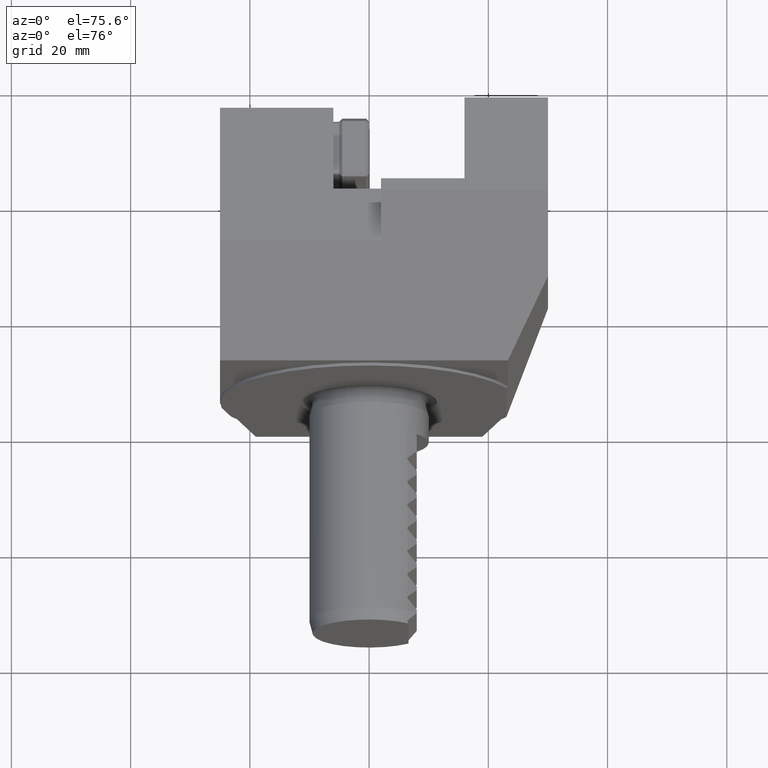
[diagram: clean part render]
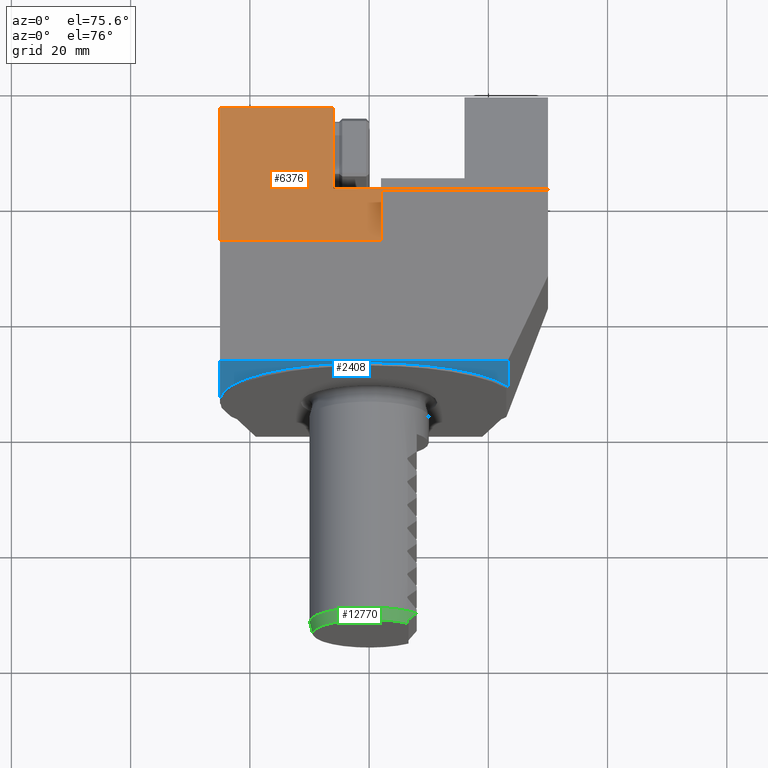
[diagram: same view with three faces highlighted in distinct colors, each labeled with its STEP entity id]
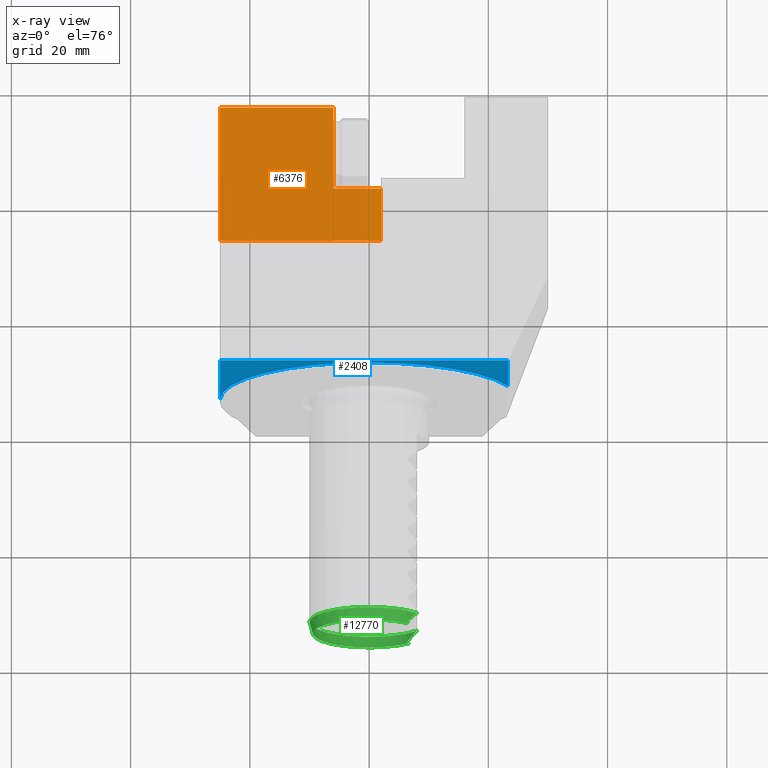
[diagram: x-ray of the same camera — body ghosted, the three highlighted faces saturated]
A machine part, auxiliary view with three faces highlighted in distinct colors.
The next image is the same camera in x-ray (body ghosted, the three faces saturated) — at least one of them is partly hidden behind the body in this view.
Their STEP definitions:

[orange] entity #6376 — the highlighted planar face has unit normal (0, 0, 1).
#202 = ORIENTED_EDGE ( 'NONE', *, *, #13843, .F. ) ;
#275 = CARTESIAN_POINT ( 'NONE',  ( -6.000000000000003553, 26.00000000000000000, 43.00000000000000000 ) ) ;
#762 = LINE ( 'NONE', #4694, #6866 ) ;
#805 = PLANE ( 'NONE',  #2265 ) ;
#1365 = VERTEX_POINT ( 'NONE', #12585 ) ;
#1441 = VERTEX_POINT ( 'NONE', #12981 ) ;
#2094 = FACE_OUTER_BOUND ( 'NONE', #10285, .T. ) ;
#2108 = DIRECTION ( 'NONE',  ( -1.000000000000000000, -1.295371175675670527E-16, 0.000000000000000000 ) ) ;
#2265 = AXIS2_PLACEMENT_3D ( 'NONE', #11246, #11327, #16477 ) ;
#2308 = ORIENTED_EDGE ( 'NONE', *, *, #9186, .T. ) ;
#2965 = CARTESIAN_POINT ( 'NONE',  ( 2.000000000000011102, -40.00000000000000711, 43.00000000000000711 ) ) ;
#3160 = EDGE_CURVE ( 'NONE', #5252, #8466, #6969, .T. ) ;
#3188 = ORIENTED_EDGE ( 'NONE', *, *, #10696, .F. ) ;
#3385 = CARTESIAN_POINT ( 'NONE',  ( 2.000000000000003997, 17.00000000000004263, 43.00000000000000711 ) ) ;
#4694 = CARTESIAN_POINT ( 'NONE',  ( -6.000000000000000888, -40.00000000000000711, 43.00000000000000711 ) ) ;
#5252 = VERTEX_POINT ( 'NONE', #275 ) ;
#5775 = VECTOR ( 'NONE', #2108, 1000.000000000000000 ) ;
#6376 = ADVANCED_FACE ( 'Defeature completata2_56', ( #2094 ), #805, .T. ) ;
#6587 = VECTOR ( 'NONE', #15278, 1000.000000000000000 ) ;
#6866 = VECTOR ( 'NONE', #7457, 1000.000000000000000 ) ;
#6969 = LINE ( 'NONE', #12140, #7246 ) ;
#7246 = VECTOR ( 'NONE', #10795, 1000.000000000000000 ) ;
#7457 = DIRECTION ( 'NONE',  ( 4.611346136468049201E-17, -1.000000000000000000, 0.000000000000000000 ) ) ;
#7963 = ORIENTED_EDGE ( 'NONE', *, *, #3160, .F. ) ;
#8466 = VERTEX_POINT ( 'NONE', #9258 ) ;
#9186 = EDGE_CURVE ( 'NONE', #1441, #8466, #11952, .T. ) ;
#9195 = VECTOR ( 'NONE', #10682, 1000.000000000000000 ) ;
#9258 = CARTESIAN_POINT ( 'NONE',  ( 2.000000000000006217, 25.99999999999999645, 43.00000000000000711 ) ) ;
#10276 = DIRECTION ( 'NONE',  ( 1.000000000000000000, -0.000000000000000000, -0.000000000000000000 ) ) ;
#10285 = EDGE_LOOP ( 'NONE', ( #202, #2308, #7963, #12942, #11160, #3188 ) ) ;
#10682 = DIRECTION ( 'NONE',  ( -1.295371175675670281E-16, 1.000000000000000000, -0.000000000000000000 ) ) ;
#10696 = EDGE_CURVE ( 'NONE', #15179, #1365, #16615, .T. ) ;
#10795 = DIRECTION ( 'NONE',  ( 1.000000000000000000, -1.577021341797097560E-16, 0.000000000000000000 ) ) ;
#10843 = VERTEX_POINT ( 'NONE', #13202 ) ;
#10941 = CARTESIAN_POINT ( 'NONE',  ( -25.00000000000000711, 17.00000000000003197, 43.00000000000000711 ) ) ;
#11085 = LINE ( 'NONE', #3385, #5775 ) ;
#11160 = ORIENTED_EDGE ( 'NONE', *, *, #11317, .F. ) ;
#11246 = CARTESIAN_POINT ( 'NONE',  ( 2.000000000000011102, -40.00000000000000711, 43.00000000000000711 ) ) ;
#11317 = EDGE_CURVE ( 'NONE', #1365, #10843, #16594, .T. ) ;
#11327 = DIRECTION ( 'NONE',  ( 0.000000000000000000, 0.000000000000000000, 1.000000000000000000 ) ) ;
#11952 = LINE ( 'NONE', #2965, #9195 ) ;
#12140 = CARTESIAN_POINT ( 'NONE',  ( 2.000000000000021760, 25.99999999999999645, 43.00000000000000711 ) ) ;
#12298 = VECTOR ( 'NONE', #10276, 1000.000000000000000 ) ;
#12574 = CARTESIAN_POINT ( 'NONE',  ( -24.99999999999998579, -40.00000000000000711, 43.00000000000000711 ) ) ;
#12585 = CARTESIAN_POINT ( 'NONE',  ( -24.99999999999999289, 39.99999999999999289, 43.00000000000000711 ) ) ;
#12714 = CARTESIAN_POINT ( 'NONE',  ( 2.000000000000000888, 39.99999999999999289, 43.00000000000000711 ) ) ;
#12942 = ORIENTED_EDGE ( 'NONE', *, *, #15407, .F. ) ;
#12981 = CARTESIAN_POINT ( 'NONE',  ( 2.000000000000006217, 17.00000000000004263, 43.00000000000000711 ) ) ;
#13202 = CARTESIAN_POINT ( 'NONE',  ( -6.000000000000005329, 39.99999999999999289, 43.00000000000000711 ) ) ;
#13843 = EDGE_CURVE ( 'NONE', #1441, #15179, #11085, .T. ) ;
#15179 = VERTEX_POINT ( 'NONE', #10941 ) ;
#15278 = DIRECTION ( 'NONE',  ( -1.295371175675670281E-16, 1.000000000000000000, -0.000000000000000000 ) ) ;
#15407 = EDGE_CURVE ( 'NONE', #10843, #5252, #762, .T. ) ;
#16477 = DIRECTION ( 'NONE',  ( 1.000000000000000000, 0.000000000000000000, -0.000000000000000000 ) ) ;
#16594 = LINE ( 'NONE', #12714, #12298 ) ;
#16615 = LINE ( 'NONE', #12574, #6587 ) ;

[blue] entity #2408 — the highlighted planar face has unit normal (0, -1, 0).
#188 = CARTESIAN_POINT ( 'NONE',  ( -24.99999999999999289, 0.4999999999999985012, 0.000000000000000000 ) ) ;
#776 = FACE_OUTER_BOUND ( 'NONE', #2245, .T. ) ;
#1389 = CARTESIAN_POINT ( 'NONE',  ( -24.99999999999999289, 0.4999999999999983902, 0.000000000000000000 ) ) ;
#1608 = DIRECTION ( 'NONE',  ( 1.000000000000000000, 1.295371175675670281E-16, -2.975747962828891662E-32 ) ) ;
#2012 = VERTEX_POINT ( 'NONE', #7940 ) ;
#2245 = EDGE_LOOP ( 'NONE', ( #16360, #11415, #7841, #12785 ) ) ;
#2408 = ADVANCED_FACE ( 'Defeature completata2_7', ( #776 ), #14931, .T. ) ;
#3242 = EDGE_CURVE ( 'NONE', #11605, #16244, #6623, .T. ) ;
#3428 = CARTESIAN_POINT ( 'NONE',  ( -25.00000000000000000, 0.4999999999999985012, 0.000000000000000000 ) ) ;
#3942 = AXIS2_PLACEMENT_3D ( 'NONE', #5864, #9758, #9681 ) ;
#4296 = VECTOR ( 'NONE', #1608, 1000.000000000000000 ) ;
#4649 = LINE ( 'NONE', #8526, #6565 ) ;
#5192 = VERTEX_POINT ( 'NONE', #1389 ) ;
#5864 = CARTESIAN_POINT ( 'NONE',  ( -6.476855878378372358E-17, 0.5000000000000016653, 0.000000000000000000 ) ) ;
#6565 = VECTOR ( 'NONE', #13704, 1000.000000000000000 ) ;
#6623 = LINE ( 'NONE', #14408, #4296 ) ;
#7515 = EDGE_CURVE ( 'NONE', #5192, #2012, #11535, .T. ) ;
#7841 = ORIENTED_EDGE ( 'NONE', *, *, #7515, .T. ) ;
#7940 = CARTESIAN_POINT ( 'NONE',  ( 23.28867513459482197, 0.5000000000000046629, 9.090523113402493749 ) ) ;
#8155 = EDGE_CURVE ( 'NONE', #11605, #5192, #8815, .T. ) ;
#8436 = CARTESIAN_POINT ( 'NONE',  ( -25.00000000000000355, 0.4999999999999990563, 26.49999999999991118 ) ) ;
#8526 = CARTESIAN_POINT ( 'NONE',  ( 23.28867513459482197, 0.5000000000000047740, 0.000000000000000000 ) ) ;
#8815 = LINE ( 'NONE', #188, #9102 ) ;
#9102 = VECTOR ( 'NONE', #9122, 1000.000000000000000 ) ;
#9122 = DIRECTION ( 'NONE',  ( 0.000000000000000000, 0.000000000000000000, -1.000000000000000000 ) ) ;
#9681 = DIRECTION ( 'NONE',  ( -1.000000000000000000, -1.301042606982605321E-16, 0.000000000000000000 ) ) ;
#9758 = DIRECTION ( 'NONE',  ( -1.295371175675670281E-16, 1.000000000000000000, -0.000000000000000000 ) ) ;
#9885 = CARTESIAN_POINT ( 'NONE',  ( 23.28867513459481842, 0.5000000000000061062, 26.49999999999991473 ) ) ;
#10409 = EDGE_CURVE ( 'NONE', #16244, #2012, #4649, .T. ) ;
#11415 = ORIENTED_EDGE ( 'NONE', *, *, #8155, .T. ) ;
#11535 = CIRCLE ( 'NONE', #3942, 25.00000000000000000 ) ;
#11605 = VERTEX_POINT ( 'NONE', #8436 ) ;
#12785 = ORIENTED_EDGE ( 'NONE', *, *, #10409, .F. ) ;
#12975 = DIRECTION ( 'NONE',  ( 1.000000000000000000, 1.295371175675670281E-16, 0.000000000000000000 ) ) ;
#13704 = DIRECTION ( 'NONE',  ( 0.000000000000000000, 0.000000000000000000, -1.000000000000000000 ) ) ;
#13759 = DIRECTION ( 'NONE',  ( 1.295371175675670281E-16, -1.000000000000000000, 0.000000000000000000 ) ) ;
#14039 = AXIS2_PLACEMENT_3D ( 'NONE', #3428, #13759, #12975 ) ;
#14408 = CARTESIAN_POINT ( 'NONE',  ( -25.00000000000000000, 0.4999999999999985012, 26.49999999999991118 ) ) ;
#14931 = PLANE ( 'NONE',  #14039 ) ;
#16244 = VERTEX_POINT ( 'NONE', #9885 ) ;
#16360 = ORIENTED_EDGE ( 'NONE', *, *, #3242, .F. ) ;

[green] entity #12770 — the highlighted conical surface has half-angle 15 deg.
#53 = VERTEX_POINT ( 'NONE', #7825 ) ;
#76 = CARTESIAN_POINT ( 'NONE',  ( 6.489267282072444409, -39.88926728207231065, -6.929827504690551088 ) ) ;
#451 = CARTESIAN_POINT ( 'NONE',  ( 6.600000000000131983, -39.99999999999999289, 6.783009610906612252 ) ) ;
#595 = CARTESIAN_POINT ( 'NONE',  ( 6.422170458639913093, -39.68076122826891350, 7.067642041701295952 ) ) ;
#624 = FACE_OUTER_BOUND ( 'NONE', #16736, .T. ) ;
#684 = CARTESIAN_POINT ( 'NONE',  ( 6.512132034355938792, -39.91213203435579970, 6.899823080348123305 ) ) ;
#932 = B_SPLINE_CURVE_WITH_KNOTS ( 'NONE', 3,
 ( #13070, #76, #8297, #1446, #5767, #7009, #2728, #11720, #6632, #6936 ),
 .UNSPECIFIED., .F., .F.,
 ( 4, 2, 2, 2, 4 ),
 ( 3.808367782840437369E-07, 0.0001310518341661070954, 0.0002617228315539301374, 0.0003923938289417531794, 0.0005230648263295762214 ),
 .UNSPECIFIED. ) ;
#951 = EDGE_CURVE ( 'NONE', #4875, #9689, #1914, .T. ) ;
#1057 = CARTESIAN_POINT ( 'NONE',  ( 6.600000000000131983, -39.99999999999999289, -6.783009610906612252 ) ) ;
#1276 = DIRECTION ( 'NONE',  ( -1.295371175675670281E-16, 1.000000000000000000, -0.000000000000000000 ) ) ;
#1314 = VERTEX_POINT ( 'NONE', #3702 ) ;
#1337 = AXIS2_PLACEMENT_3D ( 'NONE', #8754, #1276, #6458 ) ;
#1446 = CARTESIAN_POINT ( 'NONE',  ( 6.438732150437967761, -39.79862928565513158, -7.009779291572447057 ) ) ;
#1815 =( BOUNDED_CURVE ( )  B_SPLINE_CURVE ( 3, ( #8936, #6318, #3863, #2340 ),
 .UNSPECIFIED., .F., .F. ) 
 B_SPLINE_CURVE_WITH_KNOTS ( ( 4, 4 ),
 ( 5.237643640241428145, 5.456365414323784080 ),
 .UNSPECIFIED. ) 
 CURVE ( )  GEOMETRIC_REPRESENTATION_ITEM ( )  RATIONAL_B_SPLINE_CURVE ( ( 1.000000000000000000, 0.9960173704588434207, 0.9960173704588434207, 1.000000000000000000 ) ) 
 REPRESENTATION_ITEM ( '' )  );
#1845 = AXIS2_PLACEMENT_3D ( 'NONE', #12104, #4153, #15990 ) ;
#1914 =( BOUNDED_CURVE ( )  B_SPLINE_CURVE ( 3, ( #2184, #7347, #3379, #10089 ),
 .UNSPECIFIED., .F., .T. ) 
 B_SPLINE_CURVE_WITH_KNOTS ( ( 4, 4 ),
 ( 0.8268198928558013749, 1.045541666938158309 ),
 .UNSPECIFIED. ) 
 CURVE ( )  GEOMETRIC_REPRESENTATION_ITEM ( )  RATIONAL_B_SPLINE_CURVE ( ( 1.000000000000000000, 0.9960173704588433097, 0.9960173704588433097, 1.000000000000000000 ) ) 
 REPRESENTATION_ITEM ( '' )  );
#2184 = CARTESIAN_POINT ( 'NONE',  ( 7.999999999999979572, -37.99999999999982947, 6.000000000000029310 ) ) ;
#2340 = CARTESIAN_POINT ( 'NONE',  ( 7.999999999999979572, -37.99999999999982947, -6.000000000000032863 ) ) ;
#2635 = EDGE_CURVE ( 'NONE', #9839, #53, #9446, .T. ) ;
#2728 = CARTESIAN_POINT ( 'NONE',  ( 6.427720900146924876, -39.63693330733145359, -7.078460197475038740 ) ) ;
#3159 = CARTESIAN_POINT ( 'NONE',  ( 6.512132034355938792, -39.91213203435579970, -6.899823080348109094 ) ) ;
#3326 = CARTESIAN_POINT ( 'NONE',  ( 6.600000000000131983, -39.99999999999999289, -6.783009610906612252 ) ) ;
#3379 = CARTESIAN_POINT ( 'NONE',  ( 7.047106849334506151, -38.95289315066532509, 6.756612837701793772 ) ) ;
#3651 = EDGE_CURVE ( 'NONE', #1314, #4875, #14092, .T. ) ;
#3702 = CARTESIAN_POINT ( 'NONE',  ( 7.999999999999979572, -37.99999999999982947, -6.000000000000032863 ) ) ;
#3863 = CARTESIAN_POINT ( 'NONE',  ( 7.545045944833962182, -38.45495405516587084, -6.403431120763128703 ) ) ;
#4153 = DIRECTION ( 'NONE',  ( -1.295371175675670281E-16, 1.000000000000000000, -0.000000000000000000 ) ) ;
#4700 = CARTESIAN_POINT ( 'NONE',  ( 6.427829051354821743, -39.63637687985415425, 7.078563594324275066 ) ) ;
#4724 = CARTESIAN_POINT ( 'NONE',  ( 6.512132034355938792, -39.91213203435579970, -6.899823080348109094 ) ) ;
#4875 = VERTEX_POINT ( 'NONE', #13503 ) ;
#4909 = ORIENTED_EDGE ( 'NONE', *, *, #13591, .F. ) ;
#5468 = ORIENTED_EDGE ( 'NONE', *, *, #15849, .T. ) ;
#5580 = CARTESIAN_POINT ( 'NONE',  ( 6.570960913011917981, -39.97096091301177267, 6.822121769539992719 ) ) ;
#5767 = CARTESIAN_POINT ( 'NONE',  ( 6.427912032665864750, -39.76184494736730812, -7.033015206103749861 ) ) ;
#6169 = ORIENTED_EDGE ( 'NONE', *, *, #3651, .F. ) ;
#6318 = CARTESIAN_POINT ( 'NONE',  ( 7.047106849334503487, -38.95289315066532509, -6.756612837701795549 ) ) ;
#6458 = DIRECTION ( 'NONE',  ( -1.000000000000000000, 0.000000000000000000, 0.000000000000000000 ) ) ;
#6632 = CARTESIAN_POINT ( 'NONE',  ( 6.482907842025827705, -39.51709215797397690, -7.071643213515027782 ) ) ;
#6936 = CARTESIAN_POINT ( 'NONE',  ( 6.512132034355938792, -39.48786796564387913, -7.055325374998242971 ) ) ;
#7009 = CARTESIAN_POINT ( 'NONE',  ( 6.422135427709645406, -39.68082681378455590, -7.067650382883767790 ) ) ;
#7014 = VERTEX_POINT ( 'NONE', #14169 ) ;
#7029 = CARTESIAN_POINT ( 'NONE',  ( 6.482982499769461171, -39.51701750023035942, 7.071601527059132586 ) ) ;
#7054 = CARTESIAN_POINT ( 'NONE',  ( 6.541671217421724194, -39.94167121742157889, 6.861060089503274284 ) ) ;
#7347 = CARTESIAN_POINT ( 'NONE',  ( 7.545045944833967511, -38.45495405516584952, 6.403431120763124262 ) ) ;
#7825 = CARTESIAN_POINT ( 'NONE',  ( 6.600000000000131983, -39.99999999999999289, 6.783009610906612252 ) ) ;
#7926 = EDGE_CURVE ( 'NONE', #15846, #1314, #1815, .T. ) ;
#8097 = CARTESIAN_POINT ( 'NONE',  ( 4.922410467567547560E-15, -38.00000000000000000, 0.000000000000000000 ) ) ;
#8297 = CARTESIAN_POINT ( 'NONE',  ( 6.469577318284148504, -39.86245267464270370, -6.957987816724788388 ) ) ;
#8754 = CARTESIAN_POINT ( 'NONE',  ( 4.922410467567547560E-15, -38.00000000000000000, 0.000000000000000000 ) ) ;
#8803 = ORIENTED_EDGE ( 'NONE', *, *, #15938, .F. ) ;
#8840 = AXIS2_PLACEMENT_3D ( 'NONE', #8097, #13254, #15889 ) ;
#8936 = CARTESIAN_POINT ( 'NONE',  ( 6.512132034355938792, -39.48786796564387913, -7.055325374998242971 ) ) ;
#9301 = VERTEX_POINT ( 'NONE', #4724 ) ;
#9421 = ORIENTED_EDGE ( 'NONE', *, *, #951, .F. ) ;
#9446 = CIRCLE ( 'NONE', #1845, 9.464101615137758827 ) ;
#9689 = VERTEX_POINT ( 'NONE', #15778 ) ;
#9839 = VERTEX_POINT ( 'NONE', #1057 ) ;
#9859 = CARTESIAN_POINT ( 'NONE',  ( 6.570960913011917981, -39.97096091301176557, -6.822121769539991831 ) ) ;
#9984 = B_SPLINE_CURVE_WITH_KNOTS ( 'NONE', 3,
 ( #13747, #7029, #11203, #4700, #595, #16356, #15009, #684 ),
 .UNSPECIFIED., .F., .F.,
 ( 4, 2, 2, 4 ),
 ( 3.003469763379383014E-07, 0.0001316789235148733343, 0.0002630575000534087003, 0.0005258146531304614887 ),
 .UNSPECIFIED. ) ;
#10089 = CARTESIAN_POINT ( 'NONE',  ( 6.512132034355938792, -39.48786796564387913, 7.055325374998242083 ) ) ;
#10268 = ORIENTED_EDGE ( 'NONE', *, *, #12751, .T. ) ;
#10333 = ORIENTED_EDGE ( 'NONE', *, *, #7926, .F. ) ;
#10730 = CARTESIAN_POINT ( 'NONE',  ( 6.512132034355938792, -39.91213203435579970, 6.899823080348123305 ) ) ;
#11122 =( BOUNDED_CURVE ( )  B_SPLINE_CURVE ( 3, ( #451, #5580, #7054, #10730 ),
 .UNSPECIFIED., .F., .T. ) 
 B_SPLINE_CURVE_WITH_KNOTS ( ( 4, 4 ),
 ( 3.762518325397878005, 3.774892052885220561 ),
 .UNSPECIFIED. ) 
 CURVE ( )  GEOMETRIC_REPRESENTATION_ITEM ( )  RATIONAL_B_SPLINE_CURVE ( ( 1.000000000000000000, 0.9999872409463709255, 0.9999872409463709255, 1.000000000000000000 ) ) 
 REPRESENTATION_ITEM ( '' )  );
#11161 =( BOUNDED_CURVE ( )  B_SPLINE_CURVE ( 3, ( #3159, #13492, #9859, #3326 ),
 .UNSPECIFIED., .F., .T. ) 
 B_SPLINE_CURVE_WITH_KNOTS ( ( 4, 4 ),
 ( 2.508293254294366559, 2.520666981781708227 ),
 .UNSPECIFIED. ) 
 CURVE ( )  GEOMETRIC_REPRESENTATION_ITEM ( )  RATIONAL_B_SPLINE_CURVE ( ( 1.000000000000000000, 0.9999872409463709255, 0.9999872409463709255, 1.000000000000000000 ) ) 
 REPRESENTATION_ITEM ( '' )  );
#11203 = CARTESIAN_POINT ( 'NONE',  ( 6.458427648659864850, -39.55421722081628388, 7.080482525553431827 ) ) ;
#11720 = CARTESIAN_POINT ( 'NONE',  ( 6.458095960405287883, -39.55484561092680451, -7.080556953676355292 ) ) ;
#12104 = CARTESIAN_POINT ( 'NONE',  ( 5.181484702702679940E-15, -39.99999999999999289, 0.000000000000000000 ) ) ;
#12751 = EDGE_CURVE ( 'NONE', #53, #7014, #11122, .T. ) ;
#12770 = ADVANCED_FACE ( 'Defeature completata2_10', ( #624 ), #16137, .T. ) ;
#13070 = CARTESIAN_POINT ( 'NONE',  ( 6.512132034355938792, -39.91213203435579970, -6.899823080348109094 ) ) ;
#13254 = DIRECTION ( 'NONE',  ( -1.295371175675670281E-16, 1.000000000000000000, -0.000000000000000000 ) ) ;
#13492 = CARTESIAN_POINT ( 'NONE',  ( 6.541671217421725082, -39.94167121742157889, -6.861060089503272508 ) ) ;
#13503 = CARTESIAN_POINT ( 'NONE',  ( 7.999999999999979572, -37.99999999999982947, 6.000000000000029310 ) ) ;
#13591 = EDGE_CURVE ( 'NONE', #9301, #15846, #932, .T. ) ;
#13747 = CARTESIAN_POINT ( 'NONE',  ( 6.512132034355938792, -39.48786796564387913, 7.055325374998242083 ) ) ;
#14092 = CIRCLE ( 'NONE', #1337, 10.00000000000000178 ) ;
#14169 = CARTESIAN_POINT ( 'NONE',  ( 6.512132034355938792, -39.91213203435579970, 6.899823080348123305 ) ) ;
#14915 = CARTESIAN_POINT ( 'NONE',  ( 6.512132034355938792, -39.48786796564387913, -7.055325374998242971 ) ) ;
#15009 = CARTESIAN_POINT ( 'NONE',  ( 6.466399299154809377, -39.86639929915467917, 6.959836168454285321 ) ) ;
#15778 = CARTESIAN_POINT ( 'NONE',  ( 6.512132034355938792, -39.48786796564387913, 7.055325374998242083 ) ) ;
#15846 = VERTEX_POINT ( 'NONE', #14915 ) ;
#15849 = EDGE_CURVE ( 'NONE', #9301, #9839, #11161, .T. ) ;
#15889 = DIRECTION ( 'NONE',  ( -1.000000000000000000, 0.000000000000000000, 0.000000000000000000 ) ) ;
#15931 = ORIENTED_EDGE ( 'NONE', *, *, #2635, .T. ) ;
#15938 = EDGE_CURVE ( 'NONE', #9689, #7014, #9984, .T. ) ;
#15990 = DIRECTION ( 'NONE',  ( -1.000000000000000000, 0.000000000000000000, 0.000000000000000000 ) ) ;
#16137 = CONICAL_SURFACE ( 'NONE', #8840, 10.00000000000000178, 0.2617993877991487972 ) ;
#16356 = CARTESIAN_POINT ( 'NONE',  ( 6.430668149867844186, -39.80160784799303286, 7.016088966168504193 ) ) ;
#16736 = EDGE_LOOP ( 'NONE', ( #10333, #4909, #5468, #15931, #10268, #8803, #9421, #6169 ) ) ;